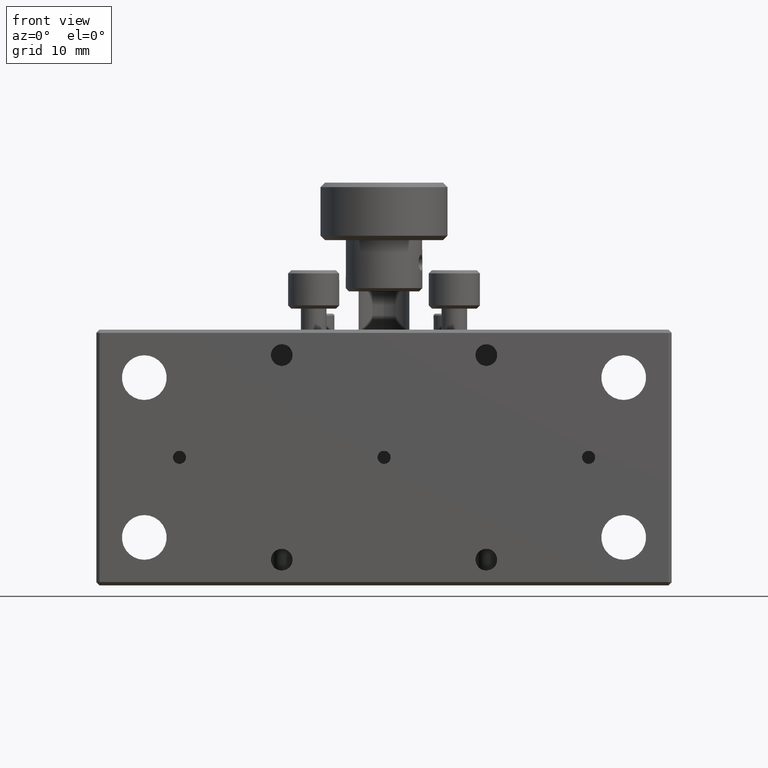
[diagram: clean part render]
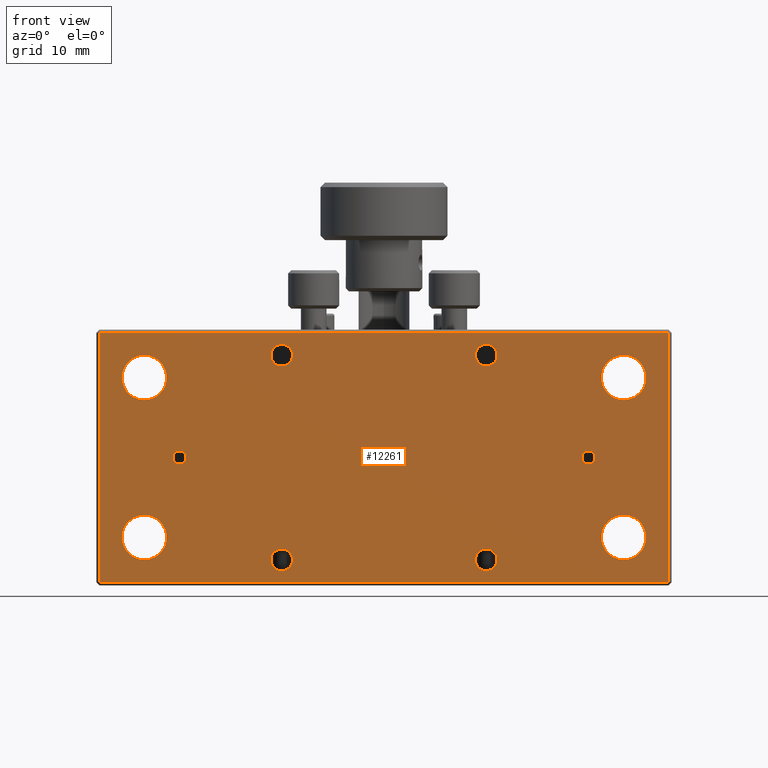
[diagram: same view with one face highlighted and labeled with its STEP entity id]
A machine part, front view. The second image highlights one B-rep face of the part: STEP entity #12261.
In plain terms, the highlighted planar face has unit normal (0, -1, 0).
Its self-contained STEP definition (entity closure, byte-faithful):
#208 = DIRECTION ( 'NONE',  ( 0.000000000000000000, 1.000000000000000000, 0.000000000000000000 ) ) ;
#254 = AXIS2_PLACEMENT_3D ( 'NONE', #4589, #1055, #11098 ) ;
#405 = AXIS2_PLACEMENT_3D ( 'NONE', #13822, #9200, #20524 ) ;
#446 = DIRECTION ( 'NONE',  ( 0.000000000000000000, -0.000000000000000000, -1.000000000000000000 ) ) ;
#894 = VERTEX_POINT ( 'NONE', #2208 ) ;
#1055 = DIRECTION ( 'NONE',  ( 0.000000000000000000, 1.000000000000000000, 0.000000000000000000 ) ) ;
#1083 = CARTESIAN_POINT ( 'NONE',  ( 58.11330177514791018, 7.552047337278103178, 12.49999999999999645 ) ) ;
#1359 = CARTESIAN_POINT ( 'NONE',  ( 4.613301775147911066, 7.552047337278103178, -16.00000000000000000 ) ) ;
#1458 = CIRCLE ( 'NONE', #12708, 3.499999999999999556 ) ;
#1623 = AXIS2_PLACEMENT_3D ( 'NONE', #19500, #4431, #17531 ) ;
#1778 = FACE_BOUND ( 'NONE', #14071, .T. ) ;
#1854 = EDGE_CURVE ( 'NONE', #15445, #15445, #20485, .T. ) ;
#2191 = CIRCLE ( 'NONE', #16967, 1.024999999999993250 ) ;
#2208 = CARTESIAN_POINT ( 'NONE',  ( 58.11330177514791018, 7.552047337278103178, -9.000000000000007105 ) ) ;
#2714 = DIRECTION ( 'NONE',  ( 1.000000000000000000, 0.000000000000000000, 0.000000000000000000 ) ) ;
#2902 = DIRECTION ( 'NONE',  ( -0.000000000000000000, 0.000000000000000000, 1.000000000000000000 ) ) ;
#2939 = CARTESIAN_POINT ( 'NONE',  ( -23.88669822485209338, 7.552047337278103178, -19.50000000000001066 ) ) ;
#3100 = CARTESIAN_POINT ( 'NONE',  ( 20.61330177514791373, 7.552047337278103178, 1.024999999999991473 ) ) ;
#3337 = ORIENTED_EDGE ( 'NONE', *, *, #11982, .T. ) ;
#3435 = FACE_BOUND ( 'NONE', #10715, .T. ) ;
#3673 = EDGE_LOOP ( 'NONE', ( #11251 ) ) ;
#3773 = LINE ( 'NONE', #13783, #14028 ) ;
#3866 = VERTEX_POINT ( 'NONE', #6392 ) ;
#3959 = CIRCLE ( 'NONE', #15913, 1.700000000000000178 ) ;
#4118 = EDGE_CURVE ( 'NONE', #8826, #8826, #21014, .T. ) ;
#4164 = DIRECTION ( 'NONE',  ( 0.000000000000000000, 1.000000000000000000, 0.000000000000000000 ) ) ;
#4198 = CARTESIAN_POINT ( 'NONE',  ( -16.88669822485207561, 7.552047337278103178, 16.00000000000000355 ) ) ;
#4303 = VERTEX_POINT ( 'NONE', #16095 ) ;
#4431 = DIRECTION ( 'NONE',  ( 0.000000000000000000, 1.000000000000000000, 0.000000000000000000 ) ) ;
#4458 = DIRECTION ( 'NONE',  ( 0.000000000000000000, 0.000000000000000000, 1.000000000000000000 ) ) ;
#4589 = CARTESIAN_POINT ( 'NONE',  ( 4.613301775147918171, 7.552047337278103178, 16.00000000000000000 ) ) ;
#4723 = EDGE_LOOP ( 'NONE', ( #16640 ) ) ;
#5027 = ORIENTED_EDGE ( 'NONE', *, *, #1854, .T. ) ;
#5093 = AXIS2_PLACEMENT_3D ( 'NONE', #13292, #16584, #9880 ) ;
#5187 = FACE_BOUND ( 'NONE', #14433, .T. ) ;
#5200 = ORIENTED_EDGE ( 'NONE', *, *, #12609, .T. ) ;
#5304 = EDGE_CURVE ( 'NONE', #14081, #19405, #3773, .T. ) ;
#5324 = AXIS2_PLACEMENT_3D ( 'NONE', #15299, #208, #8688 ) ;
#5366 = DIRECTION ( 'NONE',  ( 0.000000000000000000, 1.000000000000000000, 0.000000000000000000 ) ) ;
#5661 = ORIENTED_EDGE ( 'NONE', *, *, #17155, .T. ) ;
#5956 = VERTEX_POINT ( 'NONE', #19055 ) ;
#6101 = VECTOR ( 'NONE', #14875, 1000.000000000000000 ) ;
#6320 = EDGE_CURVE ( 'NONE', #20477, #20477, #19926, .T. ) ;
#6378 = DIRECTION ( 'NONE',  ( 0.000000000000000000, 1.000000000000000000, 0.000000000000000000 ) ) ;
#6392 = CARTESIAN_POINT ( 'NONE',  ( 4.613301775147911066, 7.552047337278103178, -14.30000000000000071 ) ) ;
#6503 = CARTESIAN_POINT ( 'NONE',  ( -23.88669822485207916, 7.552047337278104067, 19.50000000000000355 ) ) ;
#7064 = CARTESIAN_POINT ( 'NONE',  ( 52.61330177514791728, 7.552047337278103178, 1.024999999999982592 ) ) ;
#7725 = VERTEX_POINT ( 'NONE', #10603 ) ;
#7794 = VECTOR ( 'NONE', #2714, 1000.000000000000000 ) ;
#7885 = EDGE_CURVE ( 'NONE', #4303, #4303, #20230, .T. ) ;
#8091 = ORIENTED_EDGE ( 'NONE', *, *, #7885, .T. ) ;
#8393 = FACE_BOUND ( 'NONE', #4723, .T. ) ;
#8688 = DIRECTION ( 'NONE',  ( 0.000000000000000000, 0.000000000000000000, 1.000000000000000000 ) ) ;
#8691 = CARTESIAN_POINT ( 'NONE',  ( 36.61330177514791018, 7.552047337278103178, -16.00000000000000000 ) ) ;
#8791 = DIRECTION ( 'NONE',  ( 0.000000000000000000, 0.000000000000000000, 1.000000000000000000 ) ) ;
#8826 = VERTEX_POINT ( 'NONE', #7064 ) ;
#8866 = CIRCLE ( 'NONE', #15557, 3.499999999999999556 ) ;
#9026 = VERTEX_POINT ( 'NONE', #16180 ) ;
#9124 = EDGE_CURVE ( 'NONE', #7725, #7725, #2191, .T. ) ;
#9200 = DIRECTION ( 'NONE',  ( 0.000000000000000000, 1.000000000000000000, 0.000000000000000000 ) ) ;
#9450 = CARTESIAN_POINT ( 'NONE',  ( -24.38669822485204719, 7.552047337278103178, -19.50000000000000355 ) ) ;
#9496 = EDGE_LOOP ( 'NONE', ( #19518 ) ) ;
#9582 = DIRECTION ( 'NONE',  ( 0.000000000000000000, 0.000000000000000000, 1.000000000000000000 ) ) ;
#9759 = LINE ( 'NONE', #9861, #20078 ) ;
#9861 = CARTESIAN_POINT ( 'NONE',  ( 65.11330177514793149, 7.552047337278103178, 20.00000000000001066 ) ) ;
#9869 = EDGE_CURVE ( 'NONE', #17137, #9026, #9759, .T. ) ;
#9880 = DIRECTION ( 'NONE',  ( 0.000000000000000000, 0.000000000000000000, 1.000000000000000000 ) ) ;
#10159 = PLANE ( 'NONE',  #15194 ) ;
#10262 = FACE_BOUND ( 'NONE', #10979, .T. ) ;
#10603 = CARTESIAN_POINT ( 'NONE',  ( -11.38669822485208805, 7.552047337278103178, 1.024999999999984368 ) ) ;
#10626 = ORIENTED_EDGE ( 'NONE', *, *, #4118, .T. ) ;
#10715 = EDGE_LOOP ( 'NONE', ( #5200 ) ) ;
#10979 = EDGE_LOOP ( 'NONE', ( #11469 ) ) ;
#11098 = DIRECTION ( 'NONE',  ( 0.000000000000000000, 0.000000000000000000, 1.000000000000000000 ) ) ;
#11173 = DIRECTION ( 'NONE',  ( 0.000000000000000000, 1.000000000000000000, 0.000000000000000000 ) ) ;
#11246 = VERTEX_POINT ( 'NONE', #3100 ) ;
#11251 = ORIENTED_EDGE ( 'NONE', *, *, #6320, .T. ) ;
#11282 = CARTESIAN_POINT ( 'NONE',  ( 52.61330177514791728, 7.552047337278103178, -8.695067578545673335E-15 ) ) ;
#11331 = DIRECTION ( 'NONE',  ( 0.000000000000000000, 0.000000000000000000, 1.000000000000000000 ) ) ;
#11469 = ORIENTED_EDGE ( 'NONE', *, *, #13479, .T. ) ;
#11655 = EDGE_CURVE ( 'NONE', #20909, #20909, #1458, .T. ) ;
#11982 = EDGE_CURVE ( 'NONE', #19405, #17137, #19340, .T. ) ;
#12014 = FACE_BOUND ( 'NONE', #9496, .T. ) ;
#12123 = FACE_OUTER_BOUND ( 'NONE', #21473, .T. ) ;
#12177 = EDGE_CURVE ( 'NONE', #894, #894, #18685, .T. ) ;
#12261 = ADVANCED_FACE ( 'NONE', ( #18518, #3435, #12014, #8393, #20263, #1778, #16959, #12123, #17186, #5187, #20575, #10262 ), #10159, .T. ) ;
#12346 = VERTEX_POINT ( 'NONE', #4198 ) ;
#12609 = EDGE_CURVE ( 'NONE', #12346, #12346, #18354, .T. ) ;
#12708 = AXIS2_PLACEMENT_3D ( 'NONE', #1083, #6378, #9582 ) ;
#12730 = EDGE_CURVE ( 'NONE', #5956, #5956, #8866, .T. ) ;
#13214 = CARTESIAN_POINT ( 'NONE',  ( -11.38669822485208805, 7.552047337278103178, -8.695067578545673335E-15 ) ) ;
#13292 = CARTESIAN_POINT ( 'NONE',  ( 20.61330177514791373, 7.552047337278103178, -1.734723475976807094E-15 ) ) ;
#13478 = AXIS2_PLACEMENT_3D ( 'NONE', #8691, #5366, #8791 ) ;
#13479 = EDGE_CURVE ( 'NONE', #3866, #3866, #3959, .T. ) ;
#13783 = CARTESIAN_POINT ( 'NONE',  ( -23.88669822485207561, 7.552047337278103178, 20.00000000000001066 ) ) ;
#13822 = CARTESIAN_POINT ( 'NONE',  ( 58.11330177514791018, 7.552047337278103178, -12.50000000000000533 ) ) ;
#14028 = VECTOR ( 'NONE', #20487, 1000.000000000000000 ) ;
#14067 = DIRECTION ( 'NONE',  ( 0.000000000000000000, 0.000000000000000000, 1.000000000000000000 ) ) ;
#14071 = EDGE_LOOP ( 'NONE', ( #5661 ) ) ;
#14081 = VERTEX_POINT ( 'NONE', #6503 ) ;
#14433 = EDGE_LOOP ( 'NONE', ( #5027 ) ) ;
#14875 = DIRECTION ( 'NONE',  ( -1.000000000000000000, -0.000000000000000000, -0.000000000000000000 ) ) ;
#15109 = DIRECTION ( 'NONE',  ( 0.000000000000000000, -1.000000000000000000, 0.000000000000000000 ) ) ;
#15120 = CARTESIAN_POINT ( 'NONE',  ( 36.61330177514791018, 7.552047337278103178, -14.30000000000000071 ) ) ;
#15126 = EDGE_CURVE ( 'NONE', #9026, #14081, #21107, .T. ) ;
#15194 = AXIS2_PLACEMENT_3D ( 'NONE', #15539, #15109, #446 ) ;
#15295 = CIRCLE ( 'NONE', #5093, 1.024999999999993250 ) ;
#15299 = CARTESIAN_POINT ( 'NONE',  ( -16.88669822485207561, 7.552047337278103178, 12.50000000000000355 ) ) ;
#15445 = VERTEX_POINT ( 'NONE', #15120 ) ;
#15539 = CARTESIAN_POINT ( 'NONE',  ( -24.38669822485204719, 7.552047337278103178, 20.00000000000001066 ) ) ;
#15557 = AXIS2_PLACEMENT_3D ( 'NONE', #20870, #4164, #14067 ) ;
#15913 = AXIS2_PLACEMENT_3D ( 'NONE', #1359, #19516, #18093 ) ;
#16095 = CARTESIAN_POINT ( 'NONE',  ( 36.61330177514791728, 7.552047337278103178, 17.69999999999999929 ) ) ;
#16180 = CARTESIAN_POINT ( 'NONE',  ( 65.11330177514793149, 7.552047337278106731, 19.50000000000000355 ) ) ;
#16454 = EDGE_LOOP ( 'NONE', ( #19658 ) ) ;
#16584 = DIRECTION ( 'NONE',  ( 0.000000000000000000, 1.000000000000000000, 0.000000000000000000 ) ) ;
#16640 = ORIENTED_EDGE ( 'NONE', *, *, #11655, .T. ) ;
#16959 = FACE_BOUND ( 'NONE', #16454, .T. ) ;
#16967 = AXIS2_PLACEMENT_3D ( 'NONE', #13214, #21648, #11331 ) ;
#17137 = VERTEX_POINT ( 'NONE', #21391 ) ;
#17155 = EDGE_CURVE ( 'NONE', #11246, #11246, #15295, .T. ) ;
#17186 = FACE_BOUND ( 'NONE', #21484, .T. ) ;
#17531 = DIRECTION ( 'NONE',  ( 0.000000000000000000, 0.000000000000000000, 1.000000000000000000 ) ) ;
#18057 = CARTESIAN_POINT ( 'NONE',  ( -24.38669822485204719, 7.552047337278103178, 19.49999999999999645 ) ) ;
#18093 = DIRECTION ( 'NONE',  ( 0.000000000000000000, 0.000000000000000000, 1.000000000000000000 ) ) ;
#18354 = CIRCLE ( 'NONE', #5324, 3.499999999999999556 ) ;
#18518 = FACE_BOUND ( 'NONE', #20755, .T. ) ;
#18685 = CIRCLE ( 'NONE', #405, 3.499999999999999556 ) ;
#18786 = EDGE_LOOP ( 'NONE', ( #10626 ) ) ;
#18849 = CARTESIAN_POINT ( 'NONE',  ( 4.613301775147918171, 7.552047337278103178, 17.69999999999999929 ) ) ;
#19055 = CARTESIAN_POINT ( 'NONE',  ( -16.88669822485208272, 7.552047337278103178, -8.999999999999998224 ) ) ;
#19340 = LINE ( 'NONE', #9450, #7794 ) ;
#19405 = VERTEX_POINT ( 'NONE', #2939 ) ;
#19500 = CARTESIAN_POINT ( 'NONE',  ( 36.61330177514791728, 7.552047337278103178, 16.00000000000000000 ) ) ;
#19516 = DIRECTION ( 'NONE',  ( 0.000000000000000000, 1.000000000000000000, 0.000000000000000000 ) ) ;
#19518 = ORIENTED_EDGE ( 'NONE', *, *, #12177, .T. ) ;
#19566 = ORIENTED_EDGE ( 'NONE', *, *, #15126, .T. ) ;
#19658 = ORIENTED_EDGE ( 'NONE', *, *, #9124, .T. ) ;
#19678 = ORIENTED_EDGE ( 'NONE', *, *, #5304, .T. ) ;
#19711 = ORIENTED_EDGE ( 'NONE', *, *, #12730, .T. ) ;
#19926 = CIRCLE ( 'NONE', #254, 1.700000000000000178 ) ;
#20078 = VECTOR ( 'NONE', #2902, 1000.000000000000000 ) ;
#20230 = CIRCLE ( 'NONE', #1623, 1.700000000000000178 ) ;
#20263 = FACE_BOUND ( 'NONE', #18786, .T. ) ;
#20320 = AXIS2_PLACEMENT_3D ( 'NONE', #11282, #11173, #4458 ) ;
#20477 = VERTEX_POINT ( 'NONE', #18849 ) ;
#20485 = CIRCLE ( 'NONE', #13478, 1.700000000000000178 ) ;
#20487 = DIRECTION ( 'NONE',  ( 0.000000000000000000, -0.000000000000000000, -1.000000000000000000 ) ) ;
#20524 = DIRECTION ( 'NONE',  ( 0.000000000000000000, 0.000000000000000000, 1.000000000000000000 ) ) ;
#20575 = FACE_BOUND ( 'NONE', #3673, .T. ) ;
#20656 = ORIENTED_EDGE ( 'NONE', *, *, #9869, .T. ) ;
#20691 = CARTESIAN_POINT ( 'NONE',  ( 58.11330177514791018, 7.552047337278103178, 15.99999999999999645 ) ) ;
#20755 = EDGE_LOOP ( 'NONE', ( #19711 ) ) ;
#20870 = CARTESIAN_POINT ( 'NONE',  ( -16.88669822485208272, 7.552047337278103178, -12.49999999999999645 ) ) ;
#20909 = VERTEX_POINT ( 'NONE', #20691 ) ;
#21014 = CIRCLE ( 'NONE', #20320, 1.024999999999991251 ) ;
#21107 = LINE ( 'NONE', #18057, #6101 ) ;
#21391 = CARTESIAN_POINT ( 'NONE',  ( 65.11330177514793149, 7.552047337278098738, -19.50000000000001066 ) ) ;
#21473 = EDGE_LOOP ( 'NONE', ( #19566, #19678, #3337, #20656 ) ) ;
#21484 = EDGE_LOOP ( 'NONE', ( #8091 ) ) ;
#21648 = DIRECTION ( 'NONE',  ( 0.000000000000000000, 1.000000000000000000, 0.000000000000000000 ) ) ;